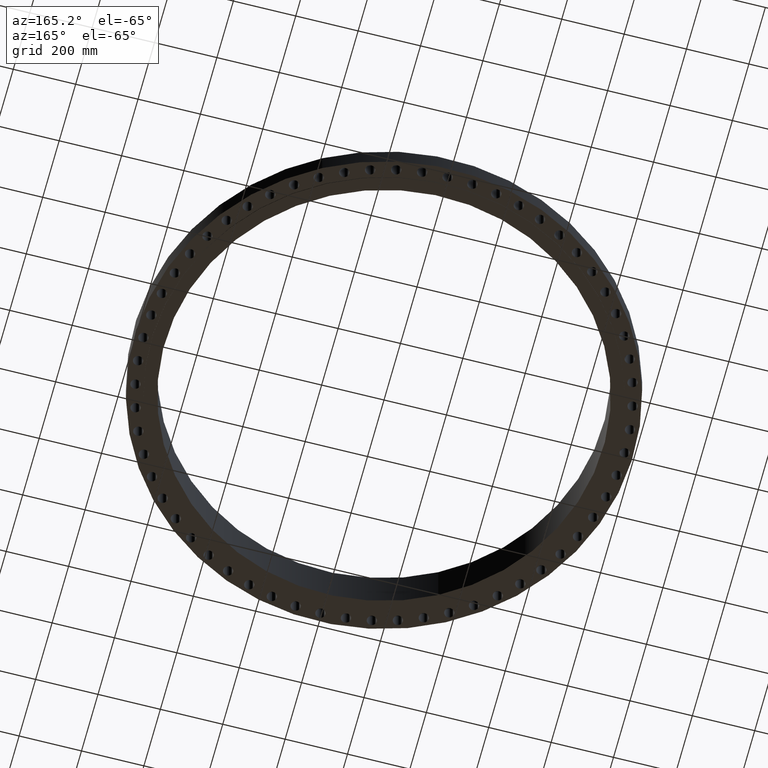
[diagram: clean part render]
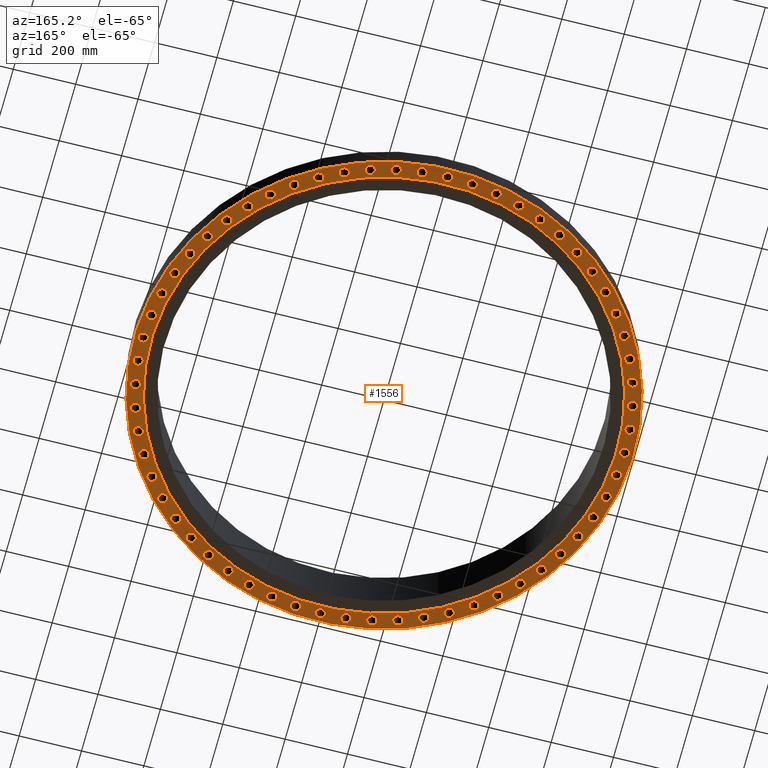
[diagram: same view with one face highlighted and labeled with its STEP entity id]
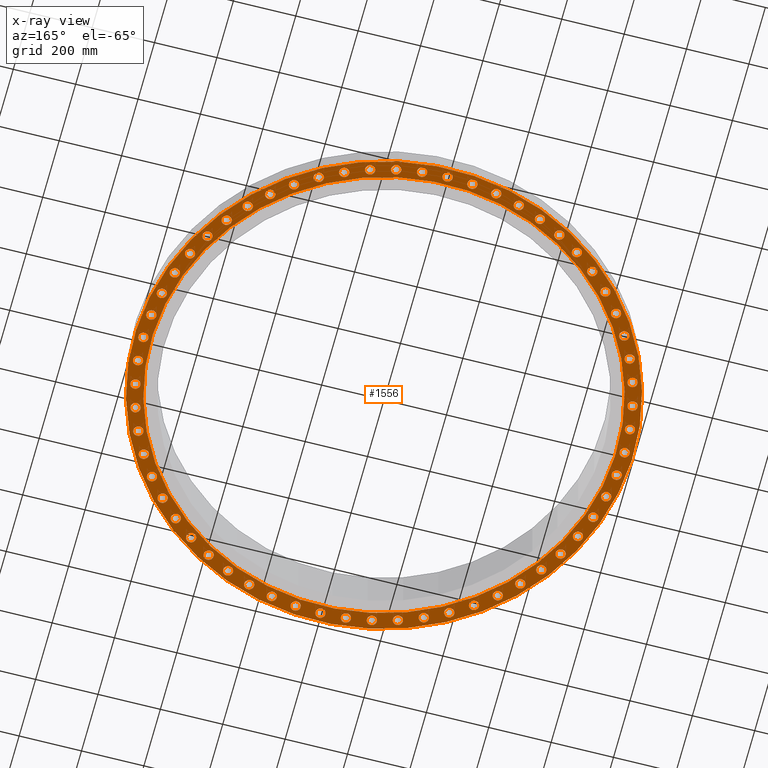
[diagram: x-ray of the same camera — body ghosted, the highlighted face saturated]
A machine part, auxiliary view. The second image highlights one B-rep face of the part: STEP entity #1556.
The next image is the same camera in x-ray: the body ghosted, the highlighted face saturated — about 0% of this face is hidden behind the body in this view.
In plain terms, the highlighted planar face has unit normal (0, 0, -1).
Its self-contained STEP definition (entity closure, byte-faithful):
#51=AXIS2_PLACEMENT_3D('Circle Axis2P3D',#49,#50,$) ;
#77=AXIS2_PLACEMENT_3D('Circle Axis2P3D',#75,#76,$) ;
#99=AXIS2_PLACEMENT_3D('Circle Axis2P3D',#97,#98,$) ;
#134=AXIS2_PLACEMENT_3D('Circle Axis2P3D',#132,#133,$) ;
#448=AXIS2_PLACEMENT_3D('Circle Axis2P3D',#446,#447,$) ;
#467=AXIS2_PLACEMENT_3D('Circle Axis2P3D',#465,#466,$) ;
#480=AXIS2_PLACEMENT_3D('Plane Axis2P3D',#477,#478,#479) ;
#496=AXIS2_PLACEMENT_3D('Circle Axis2P3D',#494,#495,$) ;
#505=AXIS2_PLACEMENT_3D('Circle Axis2P3D',#503,#504,$) ;
#514=AXIS2_PLACEMENT_3D('Circle Axis2P3D',#512,#513,$) ;
#523=AXIS2_PLACEMENT_3D('Circle Axis2P3D',#521,#522,$) ;
#532=AXIS2_PLACEMENT_3D('Circle Axis2P3D',#530,#531,$) ;
#541=AXIS2_PLACEMENT_3D('Circle Axis2P3D',#539,#540,$) ;
#550=AXIS2_PLACEMENT_3D('Circle Axis2P3D',#548,#549,$) ;
#559=AXIS2_PLACEMENT_3D('Circle Axis2P3D',#557,#558,$) ;
#568=AXIS2_PLACEMENT_3D('Circle Axis2P3D',#566,#567,$) ;
#577=AXIS2_PLACEMENT_3D('Circle Axis2P3D',#575,#576,$) ;
#586=AXIS2_PLACEMENT_3D('Circle Axis2P3D',#584,#585,$) ;
#595=AXIS2_PLACEMENT_3D('Circle Axis2P3D',#593,#594,$) ;
#604=AXIS2_PLACEMENT_3D('Circle Axis2P3D',#602,#603,$) ;
#613=AXIS2_PLACEMENT_3D('Circle Axis2P3D',#611,#612,$) ;
#622=AXIS2_PLACEMENT_3D('Circle Axis2P3D',#620,#621,$) ;
#631=AXIS2_PLACEMENT_3D('Circle Axis2P3D',#629,#630,$) ;
#640=AXIS2_PLACEMENT_3D('Circle Axis2P3D',#638,#639,$) ;
#649=AXIS2_PLACEMENT_3D('Circle Axis2P3D',#647,#648,$) ;
#658=AXIS2_PLACEMENT_3D('Circle Axis2P3D',#656,#657,$) ;
#667=AXIS2_PLACEMENT_3D('Circle Axis2P3D',#665,#666,$) ;
#676=AXIS2_PLACEMENT_3D('Circle Axis2P3D',#674,#675,$) ;
#685=AXIS2_PLACEMENT_3D('Circle Axis2P3D',#683,#684,$) ;
#694=AXIS2_PLACEMENT_3D('Circle Axis2P3D',#692,#693,$) ;
#703=AXIS2_PLACEMENT_3D('Circle Axis2P3D',#701,#702,$) ;
#712=AXIS2_PLACEMENT_3D('Circle Axis2P3D',#710,#711,$) ;
#721=AXIS2_PLACEMENT_3D('Circle Axis2P3D',#719,#720,$) ;
#730=AXIS2_PLACEMENT_3D('Circle Axis2P3D',#728,#729,$) ;
#739=AXIS2_PLACEMENT_3D('Circle Axis2P3D',#737,#738,$) ;
#748=AXIS2_PLACEMENT_3D('Circle Axis2P3D',#746,#747,$) ;
#757=AXIS2_PLACEMENT_3D('Circle Axis2P3D',#755,#756,$) ;
#766=AXIS2_PLACEMENT_3D('Circle Axis2P3D',#764,#765,$) ;
#775=AXIS2_PLACEMENT_3D('Circle Axis2P3D',#773,#774,$) ;
#784=AXIS2_PLACEMENT_3D('Circle Axis2P3D',#782,#783,$) ;
#793=AXIS2_PLACEMENT_3D('Circle Axis2P3D',#791,#792,$) ;
#802=AXIS2_PLACEMENT_3D('Circle Axis2P3D',#800,#801,$) ;
#811=AXIS2_PLACEMENT_3D('Circle Axis2P3D',#809,#810,$) ;
#820=AXIS2_PLACEMENT_3D('Circle Axis2P3D',#818,#819,$) ;
#829=AXIS2_PLACEMENT_3D('Circle Axis2P3D',#827,#828,$) ;
#838=AXIS2_PLACEMENT_3D('Circle Axis2P3D',#836,#837,$) ;
#847=AXIS2_PLACEMENT_3D('Circle Axis2P3D',#845,#846,$) ;
#856=AXIS2_PLACEMENT_3D('Circle Axis2P3D',#854,#855,$) ;
#865=AXIS2_PLACEMENT_3D('Circle Axis2P3D',#863,#864,$) ;
#874=AXIS2_PLACEMENT_3D('Circle Axis2P3D',#872,#873,$) ;
#883=AXIS2_PLACEMENT_3D('Circle Axis2P3D',#881,#882,$) ;
#892=AXIS2_PLACEMENT_3D('Circle Axis2P3D',#890,#891,$) ;
#901=AXIS2_PLACEMENT_3D('Circle Axis2P3D',#899,#900,$) ;
#910=AXIS2_PLACEMENT_3D('Circle Axis2P3D',#908,#909,$) ;
#919=AXIS2_PLACEMENT_3D('Circle Axis2P3D',#917,#918,$) ;
#928=AXIS2_PLACEMENT_3D('Circle Axis2P3D',#926,#927,$) ;
#937=AXIS2_PLACEMENT_3D('Circle Axis2P3D',#935,#936,$) ;
#946=AXIS2_PLACEMENT_3D('Circle Axis2P3D',#944,#945,$) ;
#955=AXIS2_PLACEMENT_3D('Circle Axis2P3D',#953,#954,$) ;
#964=AXIS2_PLACEMENT_3D('Circle Axis2P3D',#962,#963,$) ;
#973=AXIS2_PLACEMENT_3D('Circle Axis2P3D',#971,#972,$) ;
#982=AXIS2_PLACEMENT_3D('Circle Axis2P3D',#980,#981,$) ;
#991=AXIS2_PLACEMENT_3D('Circle Axis2P3D',#989,#990,$) ;
#1000=AXIS2_PLACEMENT_3D('Circle Axis2P3D',#998,#999,$) ;
#1009=AXIS2_PLACEMENT_3D('Circle Axis2P3D',#1007,#1008,$) ;
#1018=AXIS2_PLACEMENT_3D('Circle Axis2P3D',#1016,#1017,$) ;
#1027=AXIS2_PLACEMENT_3D('Circle Axis2P3D',#1025,#1026,$) ;
#1036=AXIS2_PLACEMENT_3D('Circle Axis2P3D',#1034,#1035,$) ;
#1045=AXIS2_PLACEMENT_3D('Circle Axis2P3D',#1043,#1044,$) ;
#1054=AXIS2_PLACEMENT_3D('Circle Axis2P3D',#1052,#1053,$) ;
#1063=AXIS2_PLACEMENT_3D('Circle Axis2P3D',#1061,#1062,$) ;
#1072=AXIS2_PLACEMENT_3D('Circle Axis2P3D',#1070,#1071,$) ;
#1081=AXIS2_PLACEMENT_3D('Circle Axis2P3D',#1079,#1080,$) ;
#1090=AXIS2_PLACEMENT_3D('Circle Axis2P3D',#1088,#1089,$) ;
#1099=AXIS2_PLACEMENT_3D('Circle Axis2P3D',#1097,#1098,$) ;
#1108=AXIS2_PLACEMENT_3D('Circle Axis2P3D',#1106,#1107,$) ;
#1117=AXIS2_PLACEMENT_3D('Circle Axis2P3D',#1115,#1116,$) ;
#1126=AXIS2_PLACEMENT_3D('Circle Axis2P3D',#1124,#1125,$) ;
#1135=AXIS2_PLACEMENT_3D('Circle Axis2P3D',#1133,#1134,$) ;
#1144=AXIS2_PLACEMENT_3D('Circle Axis2P3D',#1142,#1143,$) ;
#1153=AXIS2_PLACEMENT_3D('Circle Axis2P3D',#1151,#1152,$) ;
#1162=AXIS2_PLACEMENT_3D('Circle Axis2P3D',#1160,#1161,$) ;
#1171=AXIS2_PLACEMENT_3D('Circle Axis2P3D',#1169,#1170,$) ;
#1180=AXIS2_PLACEMENT_3D('Circle Axis2P3D',#1178,#1179,$) ;
#1189=AXIS2_PLACEMENT_3D('Circle Axis2P3D',#1187,#1188,$) ;
#1198=AXIS2_PLACEMENT_3D('Circle Axis2P3D',#1196,#1197,$) ;
#1207=AXIS2_PLACEMENT_3D('Circle Axis2P3D',#1205,#1206,$) ;
#1216=AXIS2_PLACEMENT_3D('Circle Axis2P3D',#1214,#1215,$) ;
#1225=AXIS2_PLACEMENT_3D('Circle Axis2P3D',#1223,#1224,$) ;
#1234=AXIS2_PLACEMENT_3D('Circle Axis2P3D',#1232,#1233,$) ;
#1243=AXIS2_PLACEMENT_3D('Circle Axis2P3D',#1241,#1242,$) ;
#1252=AXIS2_PLACEMENT_3D('Circle Axis2P3D',#1250,#1251,$) ;
#1261=AXIS2_PLACEMENT_3D('Circle Axis2P3D',#1259,#1260,$) ;
#1270=AXIS2_PLACEMENT_3D('Circle Axis2P3D',#1268,#1269,$) ;
#1279=AXIS2_PLACEMENT_3D('Circle Axis2P3D',#1277,#1278,$) ;
#1288=AXIS2_PLACEMENT_3D('Circle Axis2P3D',#1286,#1287,$) ;
#1297=AXIS2_PLACEMENT_3D('Circle Axis2P3D',#1295,#1296,$) ;
#1306=AXIS2_PLACEMENT_3D('Circle Axis2P3D',#1304,#1305,$) ;
#1315=AXIS2_PLACEMENT_3D('Circle Axis2P3D',#1313,#1314,$) ;
#1324=AXIS2_PLACEMENT_3D('Circle Axis2P3D',#1322,#1323,$) ;
#1333=AXIS2_PLACEMENT_3D('Circle Axis2P3D',#1331,#1332,$) ;
#1342=AXIS2_PLACEMENT_3D('Circle Axis2P3D',#1340,#1341,$) ;
#1351=AXIS2_PLACEMENT_3D('Circle Axis2P3D',#1349,#1350,$) ;
#1360=AXIS2_PLACEMENT_3D('Circle Axis2P3D',#1358,#1359,$) ;
#1369=AXIS2_PLACEMENT_3D('Circle Axis2P3D',#1367,#1368,$) ;
#1378=AXIS2_PLACEMENT_3D('Circle Axis2P3D',#1376,#1377,$) ;
#1387=AXIS2_PLACEMENT_3D('Circle Axis2P3D',#1385,#1386,$) ;
#1396=AXIS2_PLACEMENT_3D('Circle Axis2P3D',#1394,#1395,$) ;
#1405=AXIS2_PLACEMENT_3D('Circle Axis2P3D',#1403,#1404,$) ;
#1414=AXIS2_PLACEMENT_3D('Circle Axis2P3D',#1412,#1413,$) ;
#1423=AXIS2_PLACEMENT_3D('Circle Axis2P3D',#1421,#1422,$) ;
#1432=AXIS2_PLACEMENT_3D('Circle Axis2P3D',#1430,#1431,$) ;
#1441=AXIS2_PLACEMENT_3D('Circle Axis2P3D',#1439,#1440,$) ;
#1450=AXIS2_PLACEMENT_3D('Circle Axis2P3D',#1448,#1449,$) ;
#1459=AXIS2_PLACEMENT_3D('Circle Axis2P3D',#1457,#1458,$) ;
#1468=AXIS2_PLACEMENT_3D('Circle Axis2P3D',#1466,#1467,$) ;
#1477=AXIS2_PLACEMENT_3D('Circle Axis2P3D',#1475,#1476,$) ;
#1486=AXIS2_PLACEMENT_3D('Circle Axis2P3D',#1484,#1485,$) ;
#1495=AXIS2_PLACEMENT_3D('Circle Axis2P3D',#1493,#1494,$) ;
#1504=AXIS2_PLACEMENT_3D('Circle Axis2P3D',#1502,#1503,$) ;
#1513=AXIS2_PLACEMENT_3D('Circle Axis2P3D',#1511,#1512,$) ;
#1522=AXIS2_PLACEMENT_3D('Circle Axis2P3D',#1520,#1521,$) ;
#1531=AXIS2_PLACEMENT_3D('Circle Axis2P3D',#1529,#1530,$) ;
#1540=AXIS2_PLACEMENT_3D('Circle Axis2P3D',#1538,#1539,$) ;
#1549=AXIS2_PLACEMENT_3D('Circle Axis2P3D',#1547,#1548,$) ;
#44=CARTESIAN_POINT('Vertex',(29.8265108989,0.299640961629,0.)) ;
#49=CARTESIAN_POINT('Axis2P3D Location',(30.3750000001,0.,0.)) ;
#53=CARTESIAN_POINT('Vertex',(30.9234891013,-0.299640961629,0.)) ;
#75=CARTESIAN_POINT('Axis2P3D Location',(30.3750000001,0.,0.)) ;
#97=CARTESIAN_POINT('Axis2P3D Location',(0.,0.,3.91637728372E-015)) ;
#101=CARTESIAN_POINT('Vertex',(-15.1019044661,-27.6438506997,3.91637728372E-015)) ;
#103=CARTESIAN_POINT('Vertex',(15.1019044661,27.6438506997,3.91637728372E-015)) ;
#132=CARTESIAN_POINT('Axis2P3D Location',(0.,0.,3.91637728372E-015)) ;
#443=CARTESIAN_POINT('Vertex',(-14.0831251966,-25.7789877556,3.91637728372E-015)) ;
#446=CARTESIAN_POINT('Axis2P3D Location',(0.,0.,3.91637728372E-015)) ;
#450=CARTESIAN_POINT('Vertex',(14.0831251966,25.7789877556,3.91637728372E-015)) ;
#465=CARTESIAN_POINT('Axis2P3D Location',(0.,0.,3.91637728372E-015)) ;
#477=CARTESIAN_POINT('Axis2P3D Location',(0.,29.3750000001,0.)) ;
#494=CARTESIAN_POINT('Axis2P3D Location',(30.2086025719,-3.17505207177,0.)) ;
#498=CARTESIAN_POINT('Vertex',(29.6944391607,-2.81971985181,0.)) ;
#500=CARTESIAN_POINT('Vertex',(30.7227659832,-3.53038429172,-2.23792987641E-015)) ;
#503=CARTESIAN_POINT('Axis2P3D Location',(30.2086025719,-3.17505207177,0.)) ;
#512=CARTESIAN_POINT('Axis2P3D Location',(29.7112333724,-6.31531760861,0.)) ;
#516=CARTESIAN_POINT('Vertex',(29.237028933,-5.90818722449,0.)) ;
#518=CARTESIAN_POINT('Vertex',(30.1854378118,-6.72244799274,-1.1189649382E-015)) ;
#521=CARTESIAN_POINT('Axis2P3D Location',(29.7112333724,-6.31531760861,0.)) ;
#530=CARTESIAN_POINT('Axis2P3D Location',(28.8883416826,-9.38639120418,0.)) ;
#534=CARTESIAN_POINT('Vertex',(28.4592916981,-8.93192326158,0.)) ;
#536=CARTESIAN_POINT('Vertex',(29.317391667,-9.84085914678,-2.23792987641E-015)) ;
#539=CARTESIAN_POINT('Axis2P3D Location',(28.8883416826,-9.38639120418,0.)) ;
#548=CARTESIAN_POINT('Axis2P3D Location',(27.748943276,-12.3546255335,0.)) ;
#552=CARTESIAN_POINT('Vertex',(27.3697485079,-11.8577992783,0.)) ;
#554=CARTESIAN_POINT('Vertex',(28.1281380441,-12.8514517887,-2.23792987641E-015)) ;
#557=CARTESIAN_POINT('Axis2P3D Location',(27.748943276,-12.3546255335,0.)) ;
#566=CARTESIAN_POINT('Axis2P3D Location',(26.3055216401,-15.1875000001,0.)) ;
#570=CARTESIAN_POINT('Vertex',(25.9803366255,-14.6537587647,0.)) ;
#572=CARTESIAN_POINT('Vertex',(26.6307066546,-15.7212412354,0.)) ;
#575=CARTESIAN_POINT('Axis2P3D Location',(26.3055216401,-15.1875000001,0.)) ;
#584=CARTESIAN_POINT('Axis2P3D Location',(24.5738912042,-17.8539770385,0.)) ;
#588=CARTESIAN_POINT('Vertex',(24.3062787384,-17.2891686036,0.)) ;
#590=CARTESIAN_POINT('Vertex',(24.8415036701,-18.4187854733,0.)) ;
#593=CARTESIAN_POINT('Axis2P3D Location',(24.5738912042,-17.8539770385,0.)) ;
#602=CARTESIAN_POINT('Axis2P3D Location',(22.573024074,-20.3248421682,0.)) ;
#606=CARTESIAN_POINT('Vertex',(22.3659161749,-19.7351546932,0.)) ;
#608=CARTESIAN_POINT('Vertex',(22.780131973,-20.9145296432,0.)) ;
#611=CARTESIAN_POINT('Axis2P3D Location',(22.573024074,-20.3248421682,0.)) ;
#620=CARTESIAN_POINT('Axis2P3D Location',(20.3248421682,-22.573024074,0.)) ;
#624=CARTESIAN_POINT('Vertex',(20.1805079535,-21.9649182982,0.)) ;
#626=CARTESIAN_POINT('Vertex',(20.469176383,-23.1811298497,0.)) ;
#629=CARTESIAN_POINT('Axis2P3D Location',(20.3248421682,-22.573024074,0.)) ;
#638=CARTESIAN_POINT('Axis2P3D Location',(17.8539770385,-24.5738912042,0.)) ;
#642=CARTESIAN_POINT('Vertex',(17.7739978639,-23.9540296619,0.)) ;
#644=CARTESIAN_POINT('Vertex',(17.933956213,-25.1937527466,0.)) ;
#647=CARTESIAN_POINT('Axis2P3D Location',(17.8539770385,-24.5738912042,0.)) ;
#656=CARTESIAN_POINT('Axis2P3D Location',(15.1875000001,-26.3055216401,0.)) ;
#660=CARTESIAN_POINT('Vertex',(15.1727521343,-25.6806956639,0.)) ;
#662=CARTESIAN_POINT('Vertex',(15.2022478659,-26.9303476162,0.)) ;
#665=CARTESIAN_POINT('Axis2P3D Location',(15.1875000001,-26.3055216401,0.)) ;
#674=CARTESIAN_POINT('Axis2P3D Location',(12.3546255335,-27.748943276,0.)) ;
#678=CARTESIAN_POINT('Vertex',(12.4052705571,-27.1259985902,0.)) ;
#680=CARTESIAN_POINT('Vertex',(12.3039805098,-28.3718879618,-2.23792987641E-015)) ;
#683=CARTESIAN_POINT('Axis2P3D Location',(12.3546255335,-27.748943276,0.)) ;
#692=CARTESIAN_POINT('Axis2P3D Location',(9.38639120418,-28.8883416826,0.)) ;
#696=CARTESIAN_POINT('Vertex',(9.50187423979,-28.2741033994,0.)) ;
#698=CARTESIAN_POINT('Vertex',(9.27090816857,-29.5025799657,-2.23792987641E-015)) ;
#701=CARTESIAN_POINT('Axis2P3D Location',(9.38639120418,-28.8883416826,0.)) ;
#710=CARTESIAN_POINT('Axis2P3D Location',(6.31531760861,-29.7112333724,0.)) ;
#714=CARTESIAN_POINT('Vertex',(6.49437339989,-29.1124312151,0.)) ;
#716=CARTESIAN_POINT('Vertex',(6.13626181734,-30.3100355297,0.)) ;
#719=CARTESIAN_POINT('Axis2P3D Location',(6.31531760861,-29.7112333724,0.)) ;
#728=CARTESIAN_POINT('Axis2P3D Location',(3.17505207177,-30.2086025719,0.)) ;
#732=CARTESIAN_POINT('Vertex',(3.41571884599,-29.6317971422,0.)) ;
#734=CARTESIAN_POINT('Vertex',(2.93438529754,-30.7854080017,-2.23792987641E-015)) ;
#737=CARTESIAN_POINT('Axis2P3D Location',(3.17505207177,-30.2086025719,0.)) ;
#746=CARTESIAN_POINT('Axis2P3D Location',(-2.86734765415E-015,-30.3750000001,0.)) ;
#750=CARTESIAN_POINT('Vertex',(0.299640961629,-29.8265108989,0.)) ;
#752=CARTESIAN_POINT('Vertex',(-0.299640961629,-30.9234891013,0.)) ;
#755=CARTESIAN_POINT('Axis2P3D Location',(-2.16799456777E-015,-30.3750000001,0.)) ;
#764=CARTESIAN_POINT('Axis2P3D Location',(-3.17505207177,-30.2086025719,0.)) ;
#768=CARTESIAN_POINT('Vertex',(-2.81971985181,-29.6944391607,0.)) ;
#770=CARTESIAN_POINT('Vertex',(-3.53038429172,-30.7227659832,-2.23792987641E-015)) ;
#773=CARTESIAN_POINT('Axis2P3D Location',(-3.17505207177,-30.2086025719,0.)) ;
#782=CARTESIAN_POINT('Axis2P3D Location',(-6.31531760861,-29.7112333724,0.)) ;
#786=CARTESIAN_POINT('Vertex',(-5.90818722449,-29.237028933,0.)) ;
#788=CARTESIAN_POINT('Vertex',(-6.72244799274,-30.1854378118,-1.1189649382E-015)) ;
#791=CARTESIAN_POINT('Axis2P3D Location',(-6.31531760861,-29.7112333724,0.)) ;
#800=CARTESIAN_POINT('Axis2P3D Location',(-9.38639120418,-28.8883416826,0.)) ;
#804=CARTESIAN_POINT('Vertex',(-8.93192326158,-28.4592916981,0.)) ;
#806=CARTESIAN_POINT('Vertex',(-9.84085914678,-29.317391667,0.)) ;
#809=CARTESIAN_POINT('Axis2P3D Location',(-9.38639120418,-28.8883416826,0.)) ;
#818=CARTESIAN_POINT('Axis2P3D Location',(-12.3546255335,-27.748943276,0.)) ;
#822=CARTESIAN_POINT('Vertex',(-11.8577992783,-27.3697485079,0.)) ;
#824=CARTESIAN_POINT('Vertex',(-12.8514517887,-28.1281380441,0.)) ;
#827=CARTESIAN_POINT('Axis2P3D Location',(-12.3546255335,-27.748943276,0.)) ;
#836=CARTESIAN_POINT('Axis2P3D Location',(-15.1875000001,-26.3055216401,0.)) ;
#840=CARTESIAN_POINT('Vertex',(-14.6537587647,-25.9803366255,0.)) ;
#842=CARTESIAN_POINT('Vertex',(-15.7212412354,-26.6307066546,-2.23792987641E-015)) ;
#845=CARTESIAN_POINT('Axis2P3D Location',(-15.1875000001,-26.3055216401,0.)) ;
#854=CARTESIAN_POINT('Axis2P3D Location',(-17.8539770385,-24.5738912042,0.)) ;
#858=CARTESIAN_POINT('Vertex',(-17.2891686036,-24.3062787384,0.)) ;
#860=CARTESIAN_POINT('Vertex',(-18.4187854733,-24.8415036701,-2.23792987641E-015)) ;
#863=CARTESIAN_POINT('Axis2P3D Location',(-17.8539770385,-24.5738912042,0.)) ;
#872=CARTESIAN_POINT('Axis2P3D Location',(-20.3248421682,-22.573024074,0.)) ;
#876=CARTESIAN_POINT('Vertex',(-19.7351546932,-22.3659161749,0.)) ;
#878=CARTESIAN_POINT('Vertex',(-20.9145296432,-22.780131973,0.)) ;
#881=CARTESIAN_POINT('Axis2P3D Location',(-20.3248421682,-22.573024074,0.)) ;
#890=CARTESIAN_POINT('Axis2P3D Location',(-22.573024074,-20.3248421682,0.)) ;
#894=CARTESIAN_POINT('Vertex',(-21.9649182982,-20.1805079535,0.)) ;
#896=CARTESIAN_POINT('Vertex',(-23.1811298497,-20.469176383,0.)) ;
#899=CARTESIAN_POINT('Axis2P3D Location',(-22.573024074,-20.3248421682,0.)) ;
#908=CARTESIAN_POINT('Axis2P3D Location',(-24.5738912042,-17.8539770385,0.)) ;
#912=CARTESIAN_POINT('Vertex',(-23.9540296619,-17.7739978639,0.)) ;
#914=CARTESIAN_POINT('Vertex',(-25.1937527466,-17.933956213,0.)) ;
#917=CARTESIAN_POINT('Axis2P3D Location',(-24.5738912042,-17.8539770385,0.)) ;
#926=CARTESIAN_POINT('Axis2P3D Location',(-26.3055216401,-15.1875000001,0.)) ;
#930=CARTESIAN_POINT('Vertex',(-25.6806956639,-15.1727521343,0.)) ;
#932=CARTESIAN_POINT('Vertex',(-26.9303476162,-15.2022478659,0.)) ;
#935=CARTESIAN_POINT('Axis2P3D Location',(-26.3055216401,-15.1875000001,0.)) ;
#944=CARTESIAN_POINT('Axis2P3D Location',(-27.748943276,-12.3546255335,0.)) ;
#948=CARTESIAN_POINT('Vertex',(-27.1259985902,-12.4052705571,0.)) ;
#950=CARTESIAN_POINT('Vertex',(-28.3718879618,-12.3039805098,0.)) ;
#953=CARTESIAN_POINT('Axis2P3D Location',(-27.748943276,-12.3546255335,0.)) ;
#962=CARTESIAN_POINT('Axis2P3D Location',(-28.8883416826,-9.38639120418,0.)) ;
#966=CARTESIAN_POINT('Vertex',(-28.2741033994,-9.50187423979,0.)) ;
#968=CARTESIAN_POINT('Vertex',(-29.5025799657,-9.27090816857,0.)) ;
#971=CARTESIAN_POINT('Axis2P3D Location',(-28.8883416826,-9.38639120418,0.)) ;
#980=CARTESIAN_POINT('Axis2P3D Location',(-29.7112333724,-6.31531760861,0.)) ;
#984=CARTESIAN_POINT('Vertex',(-29.1124312151,-6.49437339989,0.)) ;
#986=CARTESIAN_POINT('Vertex',(-30.3100355297,-6.13626181734,-1.1189649382E-015)) ;
#989=CARTESIAN_POINT('Axis2P3D Location',(-29.7112333724,-6.31531760861,0.)) ;
#998=CARTESIAN_POINT('Axis2P3D Location',(-30.2086025719,-3.17505207177,0.)) ;
#1002=CARTESIAN_POINT('Vertex',(-29.6317971422,-3.41571884599,0.)) ;
#1004=CARTESIAN_POINT('Vertex',(-30.7854080017,-2.93438529754,0.)) ;
#1007=CARTESIAN_POINT('Axis2P3D Location',(-30.2086025719,-3.17505207177,0.)) ;
#1016=CARTESIAN_POINT('Axis2P3D Location',(-30.3750000001,0.,0.)) ;
#1020=CARTESIAN_POINT('Vertex',(-29.8265108989,-0.299640961629,0.)) ;
#1022=CARTESIAN_POINT('Vertex',(-30.9234891013,0.299640961629,0.)) ;
#1025=CARTESIAN_POINT('Axis2P3D Location',(-30.3750000001,0.,0.)) ;
#1034=CARTESIAN_POINT('Axis2P3D Location',(-30.2086025719,3.17505207177,0.)) ;
#1038=CARTESIAN_POINT('Vertex',(-29.6944391607,2.81971985181,0.)) ;
#1040=CARTESIAN_POINT('Vertex',(-30.7227659832,3.53038429172,-2.23792987641E-015)) ;
#1043=CARTESIAN_POINT('Axis2P3D Location',(-30.2086025719,3.17505207177,0.)) ;
#1052=CARTESIAN_POINT('Axis2P3D Location',(-29.7112333724,6.31531760861,0.)) ;
#1056=CARTESIAN_POINT('Vertex',(-29.237028933,5.90818722449,0.)) ;
#1058=CARTESIAN_POINT('Vertex',(-30.1854378118,6.72244799274,0.)) ;
#1061=CARTESIAN_POINT('Axis2P3D Location',(-29.7112333724,6.31531760861,0.)) ;
#1070=CARTESIAN_POINT('Axis2P3D Location',(-28.8883416826,9.38639120418,0.)) ;
#1074=CARTESIAN_POINT('Vertex',(-28.4592916981,8.93192326158,0.)) ;
#1076=CARTESIAN_POINT('Vertex',(-29.317391667,9.84085914678,0.)) ;
#1079=CARTESIAN_POINT('Axis2P3D Location',(-28.8883416826,9.38639120418,0.)) ;
#1088=CARTESIAN_POINT('Axis2P3D Location',(-27.748943276,12.3546255335,0.)) ;
#1092=CARTESIAN_POINT('Vertex',(-27.3697485079,11.8577992783,0.)) ;
#1094=CARTESIAN_POINT('Vertex',(-28.1281380441,12.8514517887,-2.23792987641E-015)) ;
#1097=CARTESIAN_POINT('Axis2P3D Location',(-27.748943276,12.3546255335,0.)) ;
#1106=CARTESIAN_POINT('Axis2P3D Location',(-26.3055216401,15.1875000001,0.)) ;
#1110=CARTESIAN_POINT('Vertex',(-25.9803366255,14.6537587647,0.)) ;
#1112=CARTESIAN_POINT('Vertex',(-26.6307066546,15.7212412354,0.)) ;
#1115=CARTESIAN_POINT('Axis2P3D Location',(-26.3055216401,15.1875000001,0.)) ;
#1124=CARTESIAN_POINT('Axis2P3D Location',(-24.5738912042,17.8539770385,0.)) ;
#1128=CARTESIAN_POINT('Vertex',(-24.3062787384,17.2891686036,0.)) ;
#1130=CARTESIAN_POINT('Vertex',(-24.8415036701,18.4187854733,-2.23792987641E-015)) ;
#1133=CARTESIAN_POINT('Axis2P3D Location',(-24.5738912042,17.8539770385,0.)) ;
#1142=CARTESIAN_POINT('Axis2P3D Location',(-22.573024074,20.3248421682,0.)) ;
#1146=CARTESIAN_POINT('Vertex',(-22.3659161749,19.7351546932,0.)) ;
#1148=CARTESIAN_POINT('Vertex',(-22.780131973,20.9145296432,0.)) ;
#1151=CARTESIAN_POINT('Axis2P3D Location',(-22.573024074,20.3248421682,0.)) ;
#1160=CARTESIAN_POINT('Axis2P3D Location',(-20.3248421682,22.573024074,0.)) ;
#1164=CARTESIAN_POINT('Vertex',(-20.1805079535,21.9649182982,0.)) ;
#1166=CARTESIAN_POINT('Vertex',(-20.469176383,23.1811298497,0.)) ;
#1169=CARTESIAN_POINT('Axis2P3D Location',(-20.3248421682,22.573024074,0.)) ;
#1178=CARTESIAN_POINT('Axis2P3D Location',(-17.8539770385,24.5738912042,0.)) ;
#1182=CARTESIAN_POINT('Vertex',(-17.7739978639,23.9540296619,0.)) ;
#1184=CARTESIAN_POINT('Vertex',(-17.933956213,25.1937527466,0.)) ;
#1187=CARTESIAN_POINT('Axis2P3D Location',(-17.8539770385,24.5738912042,0.)) ;
#1196=CARTESIAN_POINT('Axis2P3D Location',(-15.1875000001,26.3055216401,0.)) ;
#1200=CARTESIAN_POINT('Vertex',(-15.1727521343,25.6806956639,0.)) ;
#1202=CARTESIAN_POINT('Vertex',(-15.2022478659,26.9303476162,0.)) ;
#1205=CARTESIAN_POINT('Axis2P3D Location',(-15.1875000001,26.3055216401,0.)) ;
#1214=CARTESIAN_POINT('Axis2P3D Location',(-12.3546255335,27.748943276,0.)) ;
#1218=CARTESIAN_POINT('Vertex',(-12.4052705571,27.1259985902,0.)) ;
#1220=CARTESIAN_POINT('Vertex',(-12.3039805098,28.3718879618,0.)) ;
#1223=CARTESIAN_POINT('Axis2P3D Location',(-12.3546255335,27.748943276,0.)) ;
#1232=CARTESIAN_POINT('Axis2P3D Location',(-9.38639120418,28.8883416826,0.)) ;
#1236=CARTESIAN_POINT('Vertex',(-9.50187423979,28.2741033994,0.)) ;
#1238=CARTESIAN_POINT('Vertex',(-9.27090816857,29.5025799657,0.)) ;
#1241=CARTESIAN_POINT('Axis2P3D Location',(-9.38639120418,28.8883416826,0.)) ;
#1250=CARTESIAN_POINT('Axis2P3D Location',(-6.31531760861,29.7112333724,0.)) ;
#1254=CARTESIAN_POINT('Vertex',(-6.49437339989,29.1124312151,0.)) ;
#1256=CARTESIAN_POINT('Vertex',(-6.13626181734,30.3100355297,-1.1189649382E-015)) ;
#1259=CARTESIAN_POINT('Axis2P3D Location',(-6.31531760861,29.7112333724,0.)) ;
#1268=CARTESIAN_POINT('Axis2P3D Location',(-3.17505207177,30.2086025719,0.)) ;
#1272=CARTESIAN_POINT('Vertex',(-3.41571884599,29.6317971422,0.)) ;
#1274=CARTESIAN_POINT('Vertex',(-2.93438529754,30.7854080017,-1.1189649382E-015)) ;
#1277=CARTESIAN_POINT('Axis2P3D Location',(-3.17505207177,30.2086025719,0.)) ;
#1286=CARTESIAN_POINT('Axis2P3D Location',(-6.99353086378E-016,30.3750000001,0.)) ;
#1290=CARTESIAN_POINT('Vertex',(-0.299640961629,29.8265108989,0.)) ;
#1292=CARTESIAN_POINT('Vertex',(0.299640961629,30.9234891013,0.)) ;
#1295=CARTESIAN_POINT('Axis2P3D Location',(-1.60851209867E-015,30.3750000001,0.)) ;
#1304=CARTESIAN_POINT('Axis2P3D Location',(3.17505207177,30.2086025719,0.)) ;
#1308=CARTESIAN_POINT('Vertex',(2.81971985181,29.6944391607,0.)) ;
#1310=CARTESIAN_POINT('Vertex',(3.53038429172,30.7227659832,0.)) ;
#1313=CARTESIAN_POINT('Axis2P3D Location',(3.17505207177,30.2086025719,0.)) ;
#1322=CARTESIAN_POINT('Axis2P3D Location',(6.31531760861,29.7112333724,0.)) ;
#1326=CARTESIAN_POINT('Vertex',(5.90818722449,29.237028933,0.)) ;
#1328=CARTESIAN_POINT('Vertex',(6.72244799274,30.1854378118,0.)) ;
#1331=CARTESIAN_POINT('Axis2P3D Location',(6.31531760861,29.7112333724,0.)) ;
#1340=CARTESIAN_POINT('Axis2P3D Location',(9.38639120418,28.8883416826,0.)) ;
#1344=CARTESIAN_POINT('Vertex',(8.93192326158,28.4592916981,0.)) ;
#1346=CARTESIAN_POINT('Vertex',(9.84085914678,29.317391667,0.)) ;
#1349=CARTESIAN_POINT('Axis2P3D Location',(9.38639120418,28.8883416826,0.)) ;
#1358=CARTESIAN_POINT('Axis2P3D Location',(12.3546255335,27.748943276,0.)) ;
#1362=CARTESIAN_POINT('Vertex',(11.8577992783,27.3697485079,0.)) ;
#1364=CARTESIAN_POINT('Vertex',(12.8514517887,28.1281380441,0.)) ;
#1367=CARTESIAN_POINT('Axis2P3D Location',(12.3546255335,27.748943276,0.)) ;
#1376=CARTESIAN_POINT('Axis2P3D Location',(15.1875000001,26.3055216401,0.)) ;
#1380=CARTESIAN_POINT('Vertex',(14.6537587647,25.9803366255,0.)) ;
#1382=CARTESIAN_POINT('Vertex',(15.7212412354,26.6307066546,0.)) ;
#1385=CARTESIAN_POINT('Axis2P3D Location',(15.1875000001,26.3055216401,0.)) ;
#1394=CARTESIAN_POINT('Axis2P3D Location',(17.8539770385,24.5738912042,0.)) ;
#1398=CARTESIAN_POINT('Vertex',(17.2891686036,24.3062787384,0.)) ;
#1400=CARTESIAN_POINT('Vertex',(18.4187854733,24.8415036701,0.)) ;
#1403=CARTESIAN_POINT('Axis2P3D Location',(17.8539770385,24.5738912042,0.)) ;
#1412=CARTESIAN_POINT('Axis2P3D Location',(20.3248421682,22.573024074,0.)) ;
#1416=CARTESIAN_POINT('Vertex',(19.7351546932,22.3659161749,0.)) ;
#1418=CARTESIAN_POINT('Vertex',(20.9145296432,22.780131973,-1.1189649382E-015)) ;
#1421=CARTESIAN_POINT('Axis2P3D Location',(20.3248421682,22.573024074,0.)) ;
#1430=CARTESIAN_POINT('Axis2P3D Location',(22.573024074,20.3248421682,0.)) ;
#1434=CARTESIAN_POINT('Vertex',(21.9649182982,20.1805079535,0.)) ;
#1436=CARTESIAN_POINT('Vertex',(23.1811298497,20.469176383,-1.1189649382E-015)) ;
#1439=CARTESIAN_POINT('Axis2P3D Location',(22.573024074,20.3248421682,0.)) ;
#1448=CARTESIAN_POINT('Axis2P3D Location',(24.5738912042,17.8539770385,0.)) ;
#1452=CARTESIAN_POINT('Vertex',(23.9540296619,17.7739978639,0.)) ;
#1454=CARTESIAN_POINT('Vertex',(25.1937527466,17.933956213,-1.1189649382E-015)) ;
#1457=CARTESIAN_POINT('Axis2P3D Location',(24.5738912042,17.8539770385,0.)) ;
#1466=CARTESIAN_POINT('Axis2P3D Location',(26.3055216401,15.1875000001,0.)) ;
#1470=CARTESIAN_POINT('Vertex',(25.6806956639,15.1727521343,0.)) ;
#1472=CARTESIAN_POINT('Vertex',(26.9303476162,15.2022478659,0.)) ;
#1475=CARTESIAN_POINT('Axis2P3D Location',(26.3055216401,15.1875000001,0.)) ;
#1484=CARTESIAN_POINT('Axis2P3D Location',(27.748943276,12.3546255335,0.)) ;
#1488=CARTESIAN_POINT('Vertex',(27.1259985902,12.4052705571,0.)) ;
#1490=CARTESIAN_POINT('Vertex',(28.3718879618,12.3039805098,0.)) ;
#1493=CARTESIAN_POINT('Axis2P3D Location',(27.748943276,12.3546255335,0.)) ;
#1502=CARTESIAN_POINT('Axis2P3D Location',(28.8883416826,9.38639120418,0.)) ;
#1506=CARTESIAN_POINT('Vertex',(28.2741033994,9.50187423979,0.)) ;
#1508=CARTESIAN_POINT('Vertex',(29.5025799657,9.27090816857,0.)) ;
#1511=CARTESIAN_POINT('Axis2P3D Location',(28.8883416826,9.38639120418,0.)) ;
#1520=CARTESIAN_POINT('Axis2P3D Location',(29.7112333724,6.31531760861,0.)) ;
#1524=CARTESIAN_POINT('Vertex',(29.1124312151,6.49437339989,0.)) ;
#1526=CARTESIAN_POINT('Vertex',(30.3100355297,6.13626181734,-1.1189649382E-015)) ;
#1529=CARTESIAN_POINT('Axis2P3D Location',(29.7112333724,6.31531760861,0.)) ;
#1538=CARTESIAN_POINT('Axis2P3D Location',(30.2086025719,3.17505207177,0.)) ;
#1542=CARTESIAN_POINT('Vertex',(29.6317971422,3.41571884599,0.)) ;
#1544=CARTESIAN_POINT('Vertex',(30.7854080017,2.93438529754,-2.23792987641E-015)) ;
#1547=CARTESIAN_POINT('Axis2P3D Location',(30.2086025719,3.17505207177,0.)) ;
#50=DIRECTION('Axis2P3D Direction',(0.,-0.,-0.0393700787402)) ;
#76=DIRECTION('Axis2P3D Direction',(0.,-0.,-0.0393700787402)) ;
#98=DIRECTION('Axis2P3D Direction',(0.,0.,-0.0393700787402)) ;
#133=DIRECTION('Axis2P3D Direction',(0.,0.,-0.0393700787402)) ;
#447=DIRECTION('Axis2P3D Direction',(0.,0.,-0.0393700787402)) ;
#466=DIRECTION('Axis2P3D Direction',(0.,0.,-0.0393700787402)) ;
#478=DIRECTION('Axis2P3D Direction',(0.,0.,-0.0393700787402)) ;
#479=DIRECTION('Axis2P3D XDirection',(0.0393700787402,0.,0.)) ;
#495=DIRECTION('Axis2P3D Direction',(0.,0.,-0.0393700787402)) ;
#504=DIRECTION('Axis2P3D Direction',(0.,0.,-0.0393700787402)) ;
#513=DIRECTION('Axis2P3D Direction',(0.,0.,-0.0393700787402)) ;
#522=DIRECTION('Axis2P3D Direction',(0.,0.,-0.0393700787402)) ;
#531=DIRECTION('Axis2P3D Direction',(0.,0.,-0.0393700787402)) ;
#540=DIRECTION('Axis2P3D Direction',(0.,0.,-0.0393700787402)) ;
#549=DIRECTION('Axis2P3D Direction',(0.,0.,-0.0393700787402)) ;
#558=DIRECTION('Axis2P3D Direction',(0.,0.,-0.0393700787402)) ;
#567=DIRECTION('Axis2P3D Direction',(0.,0.,-0.0393700787402)) ;
#576=DIRECTION('Axis2P3D Direction',(0.,0.,-0.0393700787402)) ;
#585=DIRECTION('Axis2P3D Direction',(0.,0.,-0.0393700787402)) ;
#594=DIRECTION('Axis2P3D Direction',(0.,0.,-0.0393700787402)) ;
#603=DIRECTION('Axis2P3D Direction',(0.,0.,-0.0393700787402)) ;
#612=DIRECTION('Axis2P3D Direction',(0.,0.,-0.0393700787402)) ;
#621=DIRECTION('Axis2P3D Direction',(0.,0.,-0.0393700787402)) ;
#630=DIRECTION('Axis2P3D Direction',(0.,0.,-0.0393700787402)) ;
#639=DIRECTION('Axis2P3D Direction',(0.,0.,-0.0393700787402)) ;
#648=DIRECTION('Axis2P3D Direction',(0.,0.,-0.0393700787402)) ;
#657=DIRECTION('Axis2P3D Direction',(0.,0.,-0.0393700787402)) ;
#666=DIRECTION('Axis2P3D Direction',(0.,0.,-0.0393700787402)) ;
#675=DIRECTION('Axis2P3D Direction',(0.,0.,-0.0393700787402)) ;
#684=DIRECTION('Axis2P3D Direction',(0.,0.,-0.0393700787402)) ;
#693=DIRECTION('Axis2P3D Direction',(0.,0.,-0.0393700787402)) ;
#702=DIRECTION('Axis2P3D Direction',(0.,0.,-0.0393700787402)) ;
#711=DIRECTION('Axis2P3D Direction',(0.,0.,-0.0393700787402)) ;
#720=DIRECTION('Axis2P3D Direction',(0.,0.,-0.0393700787402)) ;
#729=DIRECTION('Axis2P3D Direction',(0.,0.,-0.0393700787402)) ;
#738=DIRECTION('Axis2P3D Direction',(0.,0.,-0.0393700787402)) ;
#747=DIRECTION('Axis2P3D Direction',(0.,0.,-0.0393700787402)) ;
#756=DIRECTION('Axis2P3D Direction',(0.,0.,-0.0393700787402)) ;
#765=DIRECTION('Axis2P3D Direction',(0.,0.,-0.0393700787402)) ;
#774=DIRECTION('Axis2P3D Direction',(0.,0.,-0.0393700787402)) ;
#783=DIRECTION('Axis2P3D Direction',(0.,0.,-0.0393700787402)) ;
#792=DIRECTION('Axis2P3D Direction',(0.,0.,-0.0393700787402)) ;
#801=DIRECTION('Axis2P3D Direction',(0.,0.,-0.0393700787402)) ;
#810=DIRECTION('Axis2P3D Direction',(0.,0.,-0.0393700787402)) ;
#819=DIRECTION('Axis2P3D Direction',(0.,0.,-0.0393700787402)) ;
#828=DIRECTION('Axis2P3D Direction',(0.,0.,-0.0393700787402)) ;
#837=DIRECTION('Axis2P3D Direction',(0.,0.,-0.0393700787402)) ;
#846=DIRECTION('Axis2P3D Direction',(0.,0.,-0.0393700787402)) ;
#855=DIRECTION('Axis2P3D Direction',(0.,0.,-0.0393700787402)) ;
#864=DIRECTION('Axis2P3D Direction',(0.,0.,-0.0393700787402)) ;
#873=DIRECTION('Axis2P3D Direction',(0.,0.,-0.0393700787402)) ;
#882=DIRECTION('Axis2P3D Direction',(0.,0.,-0.0393700787402)) ;
#891=DIRECTION('Axis2P3D Direction',(0.,0.,-0.0393700787402)) ;
#900=DIRECTION('Axis2P3D Direction',(0.,0.,-0.0393700787402)) ;
#909=DIRECTION('Axis2P3D Direction',(0.,0.,-0.0393700787402)) ;
#918=DIRECTION('Axis2P3D Direction',(0.,0.,-0.0393700787402)) ;
#927=DIRECTION('Axis2P3D Direction',(0.,0.,-0.0393700787402)) ;
#936=DIRECTION('Axis2P3D Direction',(0.,0.,-0.0393700787402)) ;
#945=DIRECTION('Axis2P3D Direction',(0.,0.,-0.0393700787402)) ;
#954=DIRECTION('Axis2P3D Direction',(0.,0.,-0.0393700787402)) ;
#963=DIRECTION('Axis2P3D Direction',(0.,0.,-0.0393700787402)) ;
#972=DIRECTION('Axis2P3D Direction',(0.,0.,-0.0393700787402)) ;
#981=DIRECTION('Axis2P3D Direction',(0.,0.,-0.0393700787402)) ;
#990=DIRECTION('Axis2P3D Direction',(0.,0.,-0.0393700787402)) ;
#999=DIRECTION('Axis2P3D Direction',(0.,0.,-0.0393700787402)) ;
#1008=DIRECTION('Axis2P3D Direction',(0.,0.,-0.0393700787402)) ;
#1017=DIRECTION('Axis2P3D Direction',(0.,0.,-0.0393700787402)) ;
#1026=DIRECTION('Axis2P3D Direction',(0.,0.,-0.0393700787402)) ;
#1035=DIRECTION('Axis2P3D Direction',(0.,0.,-0.0393700787402)) ;
#1044=DIRECTION('Axis2P3D Direction',(0.,0.,-0.0393700787402)) ;
#1053=DIRECTION('Axis2P3D Direction',(0.,0.,-0.0393700787402)) ;
#1062=DIRECTION('Axis2P3D Direction',(0.,0.,-0.0393700787402)) ;
#1071=DIRECTION('Axis2P3D Direction',(0.,0.,-0.0393700787402)) ;
#1080=DIRECTION('Axis2P3D Direction',(0.,0.,-0.0393700787402)) ;
#1089=DIRECTION('Axis2P3D Direction',(0.,0.,-0.0393700787402)) ;
#1098=DIRECTION('Axis2P3D Direction',(0.,0.,-0.0393700787402)) ;
#1107=DIRECTION('Axis2P3D Direction',(0.,0.,-0.0393700787402)) ;
#1116=DIRECTION('Axis2P3D Direction',(0.,0.,-0.0393700787402)) ;
#1125=DIRECTION('Axis2P3D Direction',(0.,0.,-0.0393700787402)) ;
#1134=DIRECTION('Axis2P3D Direction',(0.,0.,-0.0393700787402)) ;
#1143=DIRECTION('Axis2P3D Direction',(0.,0.,-0.0393700787402)) ;
#1152=DIRECTION('Axis2P3D Direction',(0.,0.,-0.0393700787402)) ;
#1161=DIRECTION('Axis2P3D Direction',(0.,0.,-0.0393700787402)) ;
#1170=DIRECTION('Axis2P3D Direction',(0.,0.,-0.0393700787402)) ;
#1179=DIRECTION('Axis2P3D Direction',(0.,0.,-0.0393700787402)) ;
#1188=DIRECTION('Axis2P3D Direction',(0.,0.,-0.0393700787402)) ;
#1197=DIRECTION('Axis2P3D Direction',(0.,0.,-0.0393700787402)) ;
#1206=DIRECTION('Axis2P3D Direction',(0.,0.,-0.0393700787402)) ;
#1215=DIRECTION('Axis2P3D Direction',(0.,0.,-0.0393700787402)) ;
#1224=DIRECTION('Axis2P3D Direction',(0.,0.,-0.0393700787402)) ;
#1233=DIRECTION('Axis2P3D Direction',(0.,0.,-0.0393700787402)) ;
#1242=DIRECTION('Axis2P3D Direction',(0.,0.,-0.0393700787402)) ;
#1251=DIRECTION('Axis2P3D Direction',(0.,0.,-0.0393700787402)) ;
#1260=DIRECTION('Axis2P3D Direction',(0.,0.,-0.0393700787402)) ;
#1269=DIRECTION('Axis2P3D Direction',(0.,0.,-0.0393700787402)) ;
#1278=DIRECTION('Axis2P3D Direction',(0.,0.,-0.0393700787402)) ;
#1287=DIRECTION('Axis2P3D Direction',(0.,0.,-0.0393700787402)) ;
#1296=DIRECTION('Axis2P3D Direction',(0.,0.,-0.0393700787402)) ;
#1305=DIRECTION('Axis2P3D Direction',(0.,0.,-0.0393700787402)) ;
#1314=DIRECTION('Axis2P3D Direction',(0.,0.,-0.0393700787402)) ;
#1323=DIRECTION('Axis2P3D Direction',(0.,0.,-0.0393700787402)) ;
#1332=DIRECTION('Axis2P3D Direction',(0.,0.,-0.0393700787402)) ;
#1341=DIRECTION('Axis2P3D Direction',(0.,0.,-0.0393700787402)) ;
#1350=DIRECTION('Axis2P3D Direction',(0.,0.,-0.0393700787402)) ;
#1359=DIRECTION('Axis2P3D Direction',(0.,0.,-0.0393700787402)) ;
#1368=DIRECTION('Axis2P3D Direction',(0.,0.,-0.0393700787402)) ;
#1377=DIRECTION('Axis2P3D Direction',(0.,0.,-0.0393700787402)) ;
#1386=DIRECTION('Axis2P3D Direction',(0.,0.,-0.0393700787402)) ;
#1395=DIRECTION('Axis2P3D Direction',(0.,0.,-0.0393700787402)) ;
#1404=DIRECTION('Axis2P3D Direction',(0.,0.,-0.0393700787402)) ;
#1413=DIRECTION('Axis2P3D Direction',(0.,0.,-0.0393700787402)) ;
#1422=DIRECTION('Axis2P3D Direction',(0.,0.,-0.0393700787402)) ;
#1431=DIRECTION('Axis2P3D Direction',(0.,0.,-0.0393700787402)) ;
#1440=DIRECTION('Axis2P3D Direction',(0.,0.,-0.0393700787402)) ;
#1449=DIRECTION('Axis2P3D Direction',(0.,0.,-0.0393700787402)) ;
#1458=DIRECTION('Axis2P3D Direction',(0.,0.,-0.0393700787402)) ;
#1467=DIRECTION('Axis2P3D Direction',(0.,0.,-0.0393700787402)) ;
#1476=DIRECTION('Axis2P3D Direction',(0.,0.,-0.0393700787402)) ;
#1485=DIRECTION('Axis2P3D Direction',(0.,0.,-0.0393700787402)) ;
#1494=DIRECTION('Axis2P3D Direction',(0.,0.,-0.0393700787402)) ;
#1503=DIRECTION('Axis2P3D Direction',(0.,0.,-0.0393700787402)) ;
#1512=DIRECTION('Axis2P3D Direction',(0.,0.,-0.0393700787402)) ;
#1521=DIRECTION('Axis2P3D Direction',(0.,0.,-0.0393700787402)) ;
#1530=DIRECTION('Axis2P3D Direction',(0.,0.,-0.0393700787402)) ;
#1539=DIRECTION('Axis2P3D Direction',(0.,0.,-0.0393700787402)) ;
#1548=DIRECTION('Axis2P3D Direction',(0.,0.,-0.0393700787402)) ;
#483=ORIENTED_EDGE('',*,*,#105,.T.) ;
#484=ORIENTED_EDGE('',*,*,#136,.T.) ;
#487=ORIENTED_EDGE('',*,*,#79,.F.) ;
#488=ORIENTED_EDGE('',*,*,#55,.F.) ;
#491=ORIENTED_EDGE('',*,*,#469,.F.) ;
#492=ORIENTED_EDGE('',*,*,#452,.F.) ;
#509=ORIENTED_EDGE('',*,*,#502,.F.) ;
#510=ORIENTED_EDGE('',*,*,#507,.F.) ;
#527=ORIENTED_EDGE('',*,*,#520,.F.) ;
#528=ORIENTED_EDGE('',*,*,#525,.F.) ;
#545=ORIENTED_EDGE('',*,*,#538,.F.) ;
#546=ORIENTED_EDGE('',*,*,#543,.F.) ;
#563=ORIENTED_EDGE('',*,*,#556,.F.) ;
#564=ORIENTED_EDGE('',*,*,#561,.F.) ;
#581=ORIENTED_EDGE('',*,*,#574,.F.) ;
#582=ORIENTED_EDGE('',*,*,#579,.F.) ;
#599=ORIENTED_EDGE('',*,*,#592,.F.) ;
#600=ORIENTED_EDGE('',*,*,#597,.F.) ;
#617=ORIENTED_EDGE('',*,*,#610,.F.) ;
#618=ORIENTED_EDGE('',*,*,#615,.F.) ;
#635=ORIENTED_EDGE('',*,*,#628,.F.) ;
#636=ORIENTED_EDGE('',*,*,#633,.F.) ;
#653=ORIENTED_EDGE('',*,*,#646,.F.) ;
#654=ORIENTED_EDGE('',*,*,#651,.F.) ;
#671=ORIENTED_EDGE('',*,*,#664,.F.) ;
#672=ORIENTED_EDGE('',*,*,#669,.F.) ;
#689=ORIENTED_EDGE('',*,*,#682,.F.) ;
#690=ORIENTED_EDGE('',*,*,#687,.F.) ;
#707=ORIENTED_EDGE('',*,*,#700,.F.) ;
#708=ORIENTED_EDGE('',*,*,#705,.F.) ;
#725=ORIENTED_EDGE('',*,*,#718,.F.) ;
#726=ORIENTED_EDGE('',*,*,#723,.F.) ;
#743=ORIENTED_EDGE('',*,*,#736,.F.) ;
#744=ORIENTED_EDGE('',*,*,#741,.F.) ;
#761=ORIENTED_EDGE('',*,*,#754,.F.) ;
#762=ORIENTED_EDGE('',*,*,#759,.F.) ;
#779=ORIENTED_EDGE('',*,*,#772,.F.) ;
#780=ORIENTED_EDGE('',*,*,#777,.F.) ;
#797=ORIENTED_EDGE('',*,*,#790,.F.) ;
#798=ORIENTED_EDGE('',*,*,#795,.F.) ;
#815=ORIENTED_EDGE('',*,*,#808,.F.) ;
#816=ORIENTED_EDGE('',*,*,#813,.F.) ;
#833=ORIENTED_EDGE('',*,*,#826,.F.) ;
#834=ORIENTED_EDGE('',*,*,#831,.F.) ;
#851=ORIENTED_EDGE('',*,*,#844,.F.) ;
#852=ORIENTED_EDGE('',*,*,#849,.F.) ;
#869=ORIENTED_EDGE('',*,*,#862,.F.) ;
#870=ORIENTED_EDGE('',*,*,#867,.F.) ;
#887=ORIENTED_EDGE('',*,*,#880,.F.) ;
#888=ORIENTED_EDGE('',*,*,#885,.F.) ;
#905=ORIENTED_EDGE('',*,*,#898,.F.) ;
#906=ORIENTED_EDGE('',*,*,#903,.F.) ;
#923=ORIENTED_EDGE('',*,*,#916,.F.) ;
#924=ORIENTED_EDGE('',*,*,#921,.F.) ;
#941=ORIENTED_EDGE('',*,*,#934,.F.) ;
#942=ORIENTED_EDGE('',*,*,#939,.F.) ;
#959=ORIENTED_EDGE('',*,*,#952,.F.) ;
#960=ORIENTED_EDGE('',*,*,#957,.F.) ;
#977=ORIENTED_EDGE('',*,*,#970,.F.) ;
#978=ORIENTED_EDGE('',*,*,#975,.F.) ;
#995=ORIENTED_EDGE('',*,*,#988,.F.) ;
#996=ORIENTED_EDGE('',*,*,#993,.F.) ;
#1013=ORIENTED_EDGE('',*,*,#1006,.F.) ;
#1014=ORIENTED_EDGE('',*,*,#1011,.F.) ;
#1031=ORIENTED_EDGE('',*,*,#1024,.F.) ;
#1032=ORIENTED_EDGE('',*,*,#1029,.F.) ;
#1049=ORIENTED_EDGE('',*,*,#1042,.F.) ;
#1050=ORIENTED_EDGE('',*,*,#1047,.F.) ;
#1067=ORIENTED_EDGE('',*,*,#1060,.F.) ;
#1068=ORIENTED_EDGE('',*,*,#1065,.F.) ;
#1085=ORIENTED_EDGE('',*,*,#1078,.F.) ;
#1086=ORIENTED_EDGE('',*,*,#1083,.F.) ;
#1103=ORIENTED_EDGE('',*,*,#1096,.F.) ;
#1104=ORIENTED_EDGE('',*,*,#1101,.F.) ;
#1121=ORIENTED_EDGE('',*,*,#1114,.F.) ;
#1122=ORIENTED_EDGE('',*,*,#1119,.F.) ;
#1139=ORIENTED_EDGE('',*,*,#1132,.F.) ;
#1140=ORIENTED_EDGE('',*,*,#1137,.F.) ;
#1157=ORIENTED_EDGE('',*,*,#1150,.F.) ;
#1158=ORIENTED_EDGE('',*,*,#1155,.F.) ;
#1175=ORIENTED_EDGE('',*,*,#1168,.F.) ;
#1176=ORIENTED_EDGE('',*,*,#1173,.F.) ;
#1193=ORIENTED_EDGE('',*,*,#1186,.F.) ;
#1194=ORIENTED_EDGE('',*,*,#1191,.F.) ;
#1211=ORIENTED_EDGE('',*,*,#1204,.F.) ;
#1212=ORIENTED_EDGE('',*,*,#1209,.F.) ;
#1229=ORIENTED_EDGE('',*,*,#1222,.F.) ;
#1230=ORIENTED_EDGE('',*,*,#1227,.F.) ;
#1247=ORIENTED_EDGE('',*,*,#1240,.F.) ;
#1248=ORIENTED_EDGE('',*,*,#1245,.F.) ;
#1265=ORIENTED_EDGE('',*,*,#1258,.F.) ;
#1266=ORIENTED_EDGE('',*,*,#1263,.F.) ;
#1283=ORIENTED_EDGE('',*,*,#1276,.F.) ;
#1284=ORIENTED_EDGE('',*,*,#1281,.F.) ;
#1301=ORIENTED_EDGE('',*,*,#1294,.F.) ;
#1302=ORIENTED_EDGE('',*,*,#1299,.F.) ;
#1319=ORIENTED_EDGE('',*,*,#1312,.F.) ;
#1320=ORIENTED_EDGE('',*,*,#1317,.F.) ;
#1337=ORIENTED_EDGE('',*,*,#1330,.F.) ;
#1338=ORIENTED_EDGE('',*,*,#1335,.F.) ;
#1355=ORIENTED_EDGE('',*,*,#1348,.F.) ;
#1356=ORIENTED_EDGE('',*,*,#1353,.F.) ;
#1373=ORIENTED_EDGE('',*,*,#1366,.F.) ;
#1374=ORIENTED_EDGE('',*,*,#1371,.F.) ;
#1391=ORIENTED_EDGE('',*,*,#1384,.F.) ;
#1392=ORIENTED_EDGE('',*,*,#1389,.F.) ;
#1409=ORIENTED_EDGE('',*,*,#1402,.F.) ;
#1410=ORIENTED_EDGE('',*,*,#1407,.F.) ;
#1427=ORIENTED_EDGE('',*,*,#1420,.F.) ;
#1428=ORIENTED_EDGE('',*,*,#1425,.F.) ;
#1445=ORIENTED_EDGE('',*,*,#1438,.F.) ;
#1446=ORIENTED_EDGE('',*,*,#1443,.F.) ;
#1463=ORIENTED_EDGE('',*,*,#1456,.F.) ;
#1464=ORIENTED_EDGE('',*,*,#1461,.F.) ;
#1481=ORIENTED_EDGE('',*,*,#1474,.F.) ;
#1482=ORIENTED_EDGE('',*,*,#1479,.F.) ;
#1499=ORIENTED_EDGE('',*,*,#1492,.F.) ;
#1500=ORIENTED_EDGE('',*,*,#1497,.F.) ;
#1517=ORIENTED_EDGE('',*,*,#1510,.F.) ;
#1518=ORIENTED_EDGE('',*,*,#1515,.F.) ;
#1535=ORIENTED_EDGE('',*,*,#1528,.F.) ;
#1536=ORIENTED_EDGE('',*,*,#1533,.F.) ;
#1553=ORIENTED_EDGE('',*,*,#1546,.F.) ;
#1554=ORIENTED_EDGE('',*,*,#1551,.F.) ;
#489=FACE_BOUND('',#486,.T.) ;
#493=FACE_BOUND('',#490,.T.) ;
#511=FACE_BOUND('',#508,.T.) ;
#529=FACE_BOUND('',#526,.T.) ;
#547=FACE_BOUND('',#544,.T.) ;
#565=FACE_BOUND('',#562,.T.) ;
#583=FACE_BOUND('',#580,.T.) ;
#601=FACE_BOUND('',#598,.T.) ;
#619=FACE_BOUND('',#616,.T.) ;
#637=FACE_BOUND('',#634,.T.) ;
#655=FACE_BOUND('',#652,.T.) ;
#673=FACE_BOUND('',#670,.T.) ;
#691=FACE_BOUND('',#688,.T.) ;
#709=FACE_BOUND('',#706,.T.) ;
#727=FACE_BOUND('',#724,.T.) ;
#745=FACE_BOUND('',#742,.T.) ;
#763=FACE_BOUND('',#760,.T.) ;
#781=FACE_BOUND('',#778,.T.) ;
#799=FACE_BOUND('',#796,.T.) ;
#817=FACE_BOUND('',#814,.T.) ;
#835=FACE_BOUND('',#832,.T.) ;
#853=FACE_BOUND('',#850,.T.) ;
#871=FACE_BOUND('',#868,.T.) ;
#889=FACE_BOUND('',#886,.T.) ;
#907=FACE_BOUND('',#904,.T.) ;
#925=FACE_BOUND('',#922,.T.) ;
#943=FACE_BOUND('',#940,.T.) ;
#961=FACE_BOUND('',#958,.T.) ;
#979=FACE_BOUND('',#976,.T.) ;
#997=FACE_BOUND('',#994,.T.) ;
#1015=FACE_BOUND('',#1012,.T.) ;
#1033=FACE_BOUND('',#1030,.T.) ;
#1051=FACE_BOUND('',#1048,.T.) ;
#1069=FACE_BOUND('',#1066,.T.) ;
#1087=FACE_BOUND('',#1084,.T.) ;
#1105=FACE_BOUND('',#1102,.T.) ;
#1123=FACE_BOUND('',#1120,.T.) ;
#1141=FACE_BOUND('',#1138,.T.) ;
#1159=FACE_BOUND('',#1156,.T.) ;
#1177=FACE_BOUND('',#1174,.T.) ;
#1195=FACE_BOUND('',#1192,.T.) ;
#1213=FACE_BOUND('',#1210,.T.) ;
#1231=FACE_BOUND('',#1228,.T.) ;
#1249=FACE_BOUND('',#1246,.T.) ;
#1267=FACE_BOUND('',#1264,.T.) ;
#1285=FACE_BOUND('',#1282,.T.) ;
#1303=FACE_BOUND('',#1300,.T.) ;
#1321=FACE_BOUND('',#1318,.T.) ;
#1339=FACE_BOUND('',#1336,.T.) ;
#1357=FACE_BOUND('',#1354,.T.) ;
#1375=FACE_BOUND('',#1372,.T.) ;
#1393=FACE_BOUND('',#1390,.T.) ;
#1411=FACE_BOUND('',#1408,.T.) ;
#1429=FACE_BOUND('',#1426,.T.) ;
#1447=FACE_BOUND('',#1444,.T.) ;
#1465=FACE_BOUND('',#1462,.T.) ;
#1483=FACE_BOUND('',#1480,.T.) ;
#1501=FACE_BOUND('',#1498,.T.) ;
#1519=FACE_BOUND('',#1516,.T.) ;
#1537=FACE_BOUND('',#1534,.T.) ;
#1555=FACE_BOUND('',#1552,.T.) ;
#1556=ADVANCED_FACE('PartBody',(#485,#489,#493,#511,#529,#547,#565,#583,#601,#619,#637,#655,#673,#691,#709,#727,#745,#763,#781,#799,#817,#835,#853,#871,#889,#907,#925,#943,#961,#979,#997,#1015,#1033,#1051,#1069,#1087,#1105,#1123,#1141,#1159,#1177,#1195,#1213,#1231,#1249,#1267,#1285,#1303,#1321,#1339,#1357,#1375,#1393,#1411,#1429,#1447,#1465,#1483,#1501,#1519,#1537,#1555),#481,.T.) ;
#52=CIRCLE('generated circle',#51,0.625000000003) ;
#78=CIRCLE('generated circle',#77,0.625000000003) ;
#100=CIRCLE('generated circle',#99,31.5000000001) ;
#135=CIRCLE('generated circle',#134,31.5000000001) ;
#449=CIRCLE('generated circle',#448,29.3750000001) ;
#468=CIRCLE('generated circle',#467,29.3750000001) ;
#497=CIRCLE('generated circle',#496,0.625000000002) ;
#506=CIRCLE('generated circle',#505,0.625000000002) ;
#515=CIRCLE('generated circle',#514,0.625000000002) ;
#524=CIRCLE('generated circle',#523,0.625000000002) ;
#533=CIRCLE('generated circle',#532,0.625000000003) ;
#542=CIRCLE('generated circle',#541,0.625000000003) ;
#551=CIRCLE('generated circle',#550,0.625000000003) ;
#560=CIRCLE('generated circle',#559,0.625000000003) ;
#569=CIRCLE('generated circle',#568,0.625000000003) ;
#578=CIRCLE('generated circle',#577,0.625000000003) ;
#587=CIRCLE('generated circle',#586,0.625000000003) ;
#596=CIRCLE('generated circle',#595,0.625000000003) ;
#605=CIRCLE('generated circle',#604,0.625000000003) ;
#614=CIRCLE('generated circle',#613,0.625000000003) ;
#623=CIRCLE('generated circle',#622,0.625000000003) ;
#632=CIRCLE('generated circle',#631,0.625000000003) ;
#641=CIRCLE('generated circle',#640,0.625000000003) ;
#650=CIRCLE('generated circle',#649,0.625000000003) ;
#659=CIRCLE('generated circle',#658,0.625000000003) ;
#668=CIRCLE('generated circle',#667,0.625000000003) ;
#677=CIRCLE('generated circle',#676,0.625000000003) ;
#686=CIRCLE('generated circle',#685,0.625000000003) ;
#695=CIRCLE('generated circle',#694,0.625000000003) ;
#704=CIRCLE('generated circle',#703,0.625000000003) ;
#713=CIRCLE('generated circle',#712,0.625000000002) ;
#722=CIRCLE('generated circle',#721,0.625000000002) ;
#731=CIRCLE('generated circle',#730,0.625000000002) ;
#740=CIRCLE('generated circle',#739,0.625000000002) ;
#749=CIRCLE('generated circle',#748,0.625000000003) ;
#758=CIRCLE('generated circle',#757,0.625000000003) ;
#767=CIRCLE('generated circle',#766,0.625000000002) ;
#776=CIRCLE('generated circle',#775,0.625000000002) ;
#785=CIRCLE('generated circle',#784,0.625000000002) ;
#794=CIRCLE('generated circle',#793,0.625000000002) ;
#803=CIRCLE('generated circle',#802,0.625000000003) ;
#812=CIRCLE('generated circle',#811,0.625000000003) ;
#821=CIRCLE('generated circle',#820,0.625000000003) ;
#830=CIRCLE('generated circle',#829,0.625000000003) ;
#839=CIRCLE('generated circle',#838,0.625000000003) ;
#848=CIRCLE('generated circle',#847,0.625000000003) ;
#857=CIRCLE('generated circle',#856,0.625000000003) ;
#866=CIRCLE('generated circle',#865,0.625000000003) ;
#875=CIRCLE('generated circle',#874,0.625000000003) ;
#884=CIRCLE('generated circle',#883,0.625000000003) ;
#893=CIRCLE('generated circle',#892,0.625000000003) ;
#902=CIRCLE('generated circle',#901,0.625000000003) ;
#911=CIRCLE('generated circle',#910,0.625000000003) ;
#920=CIRCLE('generated circle',#919,0.625000000003) ;
#929=CIRCLE('generated circle',#928,0.625000000003) ;
#938=CIRCLE('generated circle',#937,0.625000000003) ;
#947=CIRCLE('generated circle',#946,0.625000000003) ;
#956=CIRCLE('generated circle',#955,0.625000000003) ;
#965=CIRCLE('generated circle',#964,0.625000000003) ;
#974=CIRCLE('generated circle',#973,0.625000000003) ;
#983=CIRCLE('generated circle',#982,0.625000000002) ;
#992=CIRCLE('generated circle',#991,0.625000000002) ;
#1001=CIRCLE('generated circle',#1000,0.625000000002) ;
#1010=CIRCLE('generated circle',#1009,0.625000000002) ;
#1019=CIRCLE('generated circle',#1018,0.625000000002) ;
#1028=CIRCLE('generated circle',#1027,0.625000000002) ;
#1037=CIRCLE('generated circle',#1036,0.625000000002) ;
#1046=CIRCLE('generated circle',#1045,0.625000000002) ;
#1055=CIRCLE('generated circle',#1054,0.625000000002) ;
#1064=CIRCLE('generated circle',#1063,0.625000000002) ;
#1073=CIRCLE('generated circle',#1072,0.625000000003) ;
#1082=CIRCLE('generated circle',#1081,0.625000000003) ;
#1091=CIRCLE('generated circle',#1090,0.625000000003) ;
#1100=CIRCLE('generated circle',#1099,0.625000000003) ;
#1109=CIRCLE('generated circle',#1108,0.625000000003) ;
#1118=CIRCLE('generated circle',#1117,0.625000000003) ;
#1127=CIRCLE('generated circle',#1126,0.625000000003) ;
#1136=CIRCLE('generated circle',#1135,0.625000000003) ;
#1145=CIRCLE('generated circle',#1144,0.625000000003) ;
#1154=CIRCLE('generated circle',#1153,0.625000000003) ;
#1163=CIRCLE('generated circle',#1162,0.625000000003) ;
#1172=CIRCLE('generated circle',#1171,0.625000000003) ;
#1181=CIRCLE('generated circle',#1180,0.625000000003) ;
#1190=CIRCLE('generated circle',#1189,0.625000000003) ;
#1199=CIRCLE('generated circle',#1198,0.625000000003) ;
#1208=CIRCLE('generated circle',#1207,0.625000000003) ;
#1217=CIRCLE('generated circle',#1216,0.625000000003) ;
#1226=CIRCLE('generated circle',#1225,0.625000000003) ;
#1235=CIRCLE('generated circle',#1234,0.625000000003) ;
#1244=CIRCLE('generated circle',#1243,0.625000000003) ;
#1253=CIRCLE('generated circle',#1252,0.625000000002) ;
#1262=CIRCLE('generated circle',#1261,0.625000000002) ;
#1271=CIRCLE('generated circle',#1270,0.625000000002) ;
#1280=CIRCLE('generated circle',#1279,0.625000000002) ;
#1289=CIRCLE('generated circle',#1288,0.625000000003) ;
#1298=CIRCLE('generated circle',#1297,0.625000000003) ;
#1307=CIRCLE('generated circle',#1306,0.625000000002) ;
#1316=CIRCLE('generated circle',#1315,0.625000000002) ;
#1325=CIRCLE('generated circle',#1324,0.625000000002) ;
#1334=CIRCLE('generated circle',#1333,0.625000000002) ;
#1343=CIRCLE('generated circle',#1342,0.625000000003) ;
#1352=CIRCLE('generated circle',#1351,0.625000000003) ;
#1361=CIRCLE('generated circle',#1360,0.625000000003) ;
#1370=CIRCLE('generated circle',#1369,0.625000000003) ;
#1379=CIRCLE('generated circle',#1378,0.625000000003) ;
#1388=CIRCLE('generated circle',#1387,0.625000000003) ;
#1397=CIRCLE('generated circle',#1396,0.625000000003) ;
#1406=CIRCLE('generated circle',#1405,0.625000000003) ;
#1415=CIRCLE('generated circle',#1414,0.625000000003) ;
#1424=CIRCLE('generated circle',#1423,0.625000000003) ;
#1433=CIRCLE('generated circle',#1432,0.625000000003) ;
#1442=CIRCLE('generated circle',#1441,0.625000000003) ;
#1451=CIRCLE('generated circle',#1450,0.625000000003) ;
#1460=CIRCLE('generated circle',#1459,0.625000000003) ;
#1469=CIRCLE('generated circle',#1468,0.625000000003) ;
#1478=CIRCLE('generated circle',#1477,0.625000000003) ;
#1487=CIRCLE('generated circle',#1486,0.625000000003) ;
#1496=CIRCLE('generated circle',#1495,0.625000000003) ;
#1505=CIRCLE('generated circle',#1504,0.625000000003) ;
#1514=CIRCLE('generated circle',#1513,0.625000000003) ;
#1523=CIRCLE('generated circle',#1522,0.625000000002) ;
#1532=CIRCLE('generated circle',#1531,0.625000000002) ;
#1541=CIRCLE('generated circle',#1540,0.625000000002) ;
#1550=CIRCLE('generated circle',#1549,0.625000000002) ;
#55=EDGE_CURVE('',#45,#54,#52,.T.) ;
#79=EDGE_CURVE('',#54,#45,#78,.T.) ;
#105=EDGE_CURVE('',#102,#104,#100,.T.) ;
#136=EDGE_CURVE('',#104,#102,#135,.T.) ;
#452=EDGE_CURVE('',#444,#451,#449,.T.) ;
#469=EDGE_CURVE('',#451,#444,#468,.T.) ;
#502=EDGE_CURVE('',#499,#501,#497,.T.) ;
#507=EDGE_CURVE('',#501,#499,#506,.T.) ;
#520=EDGE_CURVE('',#517,#519,#515,.T.) ;
#525=EDGE_CURVE('',#519,#517,#524,.T.) ;
#538=EDGE_CURVE('',#535,#537,#533,.T.) ;
#543=EDGE_CURVE('',#537,#535,#542,.T.) ;
#556=EDGE_CURVE('',#553,#555,#551,.T.) ;
#561=EDGE_CURVE('',#555,#553,#560,.T.) ;
#574=EDGE_CURVE('',#571,#573,#569,.T.) ;
#579=EDGE_CURVE('',#573,#571,#578,.T.) ;
#592=EDGE_CURVE('',#589,#591,#587,.T.) ;
#597=EDGE_CURVE('',#591,#589,#596,.T.) ;
#610=EDGE_CURVE('',#607,#609,#605,.T.) ;
#615=EDGE_CURVE('',#609,#607,#614,.T.) ;
#628=EDGE_CURVE('',#625,#627,#623,.T.) ;
#633=EDGE_CURVE('',#627,#625,#632,.T.) ;
#646=EDGE_CURVE('',#643,#645,#641,.T.) ;
#651=EDGE_CURVE('',#645,#643,#650,.T.) ;
#664=EDGE_CURVE('',#661,#663,#659,.T.) ;
#669=EDGE_CURVE('',#663,#661,#668,.T.) ;
#682=EDGE_CURVE('',#679,#681,#677,.T.) ;
#687=EDGE_CURVE('',#681,#679,#686,.T.) ;
#700=EDGE_CURVE('',#697,#699,#695,.T.) ;
#705=EDGE_CURVE('',#699,#697,#704,.T.) ;
#718=EDGE_CURVE('',#715,#717,#713,.T.) ;
#723=EDGE_CURVE('',#717,#715,#722,.T.) ;
#736=EDGE_CURVE('',#733,#735,#731,.T.) ;
#741=EDGE_CURVE('',#735,#733,#740,.T.) ;
#754=EDGE_CURVE('',#751,#753,#749,.T.) ;
#759=EDGE_CURVE('',#753,#751,#758,.T.) ;
#772=EDGE_CURVE('',#769,#771,#767,.T.) ;
#777=EDGE_CURVE('',#771,#769,#776,.T.) ;
#790=EDGE_CURVE('',#787,#789,#785,.T.) ;
#795=EDGE_CURVE('',#789,#787,#794,.T.) ;
#808=EDGE_CURVE('',#805,#807,#803,.T.) ;
#813=EDGE_CURVE('',#807,#805,#812,.T.) ;
#826=EDGE_CURVE('',#823,#825,#821,.T.) ;
#831=EDGE_CURVE('',#825,#823,#830,.T.) ;
#844=EDGE_CURVE('',#841,#843,#839,.T.) ;
#849=EDGE_CURVE('',#843,#841,#848,.T.) ;
#862=EDGE_CURVE('',#859,#861,#857,.T.) ;
#867=EDGE_CURVE('',#861,#859,#866,.T.) ;
#880=EDGE_CURVE('',#877,#879,#875,.T.) ;
#885=EDGE_CURVE('',#879,#877,#884,.T.) ;
#898=EDGE_CURVE('',#895,#897,#893,.T.) ;
#903=EDGE_CURVE('',#897,#895,#902,.T.) ;
#916=EDGE_CURVE('',#913,#915,#911,.T.) ;
#921=EDGE_CURVE('',#915,#913,#920,.T.) ;
#934=EDGE_CURVE('',#931,#933,#929,.T.) ;
#939=EDGE_CURVE('',#933,#931,#938,.T.) ;
#952=EDGE_CURVE('',#949,#951,#947,.T.) ;
#957=EDGE_CURVE('',#951,#949,#956,.T.) ;
#970=EDGE_CURVE('',#967,#969,#965,.T.) ;
#975=EDGE_CURVE('',#969,#967,#974,.T.) ;
#988=EDGE_CURVE('',#985,#987,#983,.T.) ;
#993=EDGE_CURVE('',#987,#985,#992,.T.) ;
#1006=EDGE_CURVE('',#1003,#1005,#1001,.T.) ;
#1011=EDGE_CURVE('',#1005,#1003,#1010,.T.) ;
#1024=EDGE_CURVE('',#1021,#1023,#1019,.T.) ;
#1029=EDGE_CURVE('',#1023,#1021,#1028,.T.) ;
#1042=EDGE_CURVE('',#1039,#1041,#1037,.T.) ;
#1047=EDGE_CURVE('',#1041,#1039,#1046,.T.) ;
#1060=EDGE_CURVE('',#1057,#1059,#1055,.T.) ;
#1065=EDGE_CURVE('',#1059,#1057,#1064,.T.) ;
#1078=EDGE_CURVE('',#1075,#1077,#1073,.T.) ;
#1083=EDGE_CURVE('',#1077,#1075,#1082,.T.) ;
#1096=EDGE_CURVE('',#1093,#1095,#1091,.T.) ;
#1101=EDGE_CURVE('',#1095,#1093,#1100,.T.) ;
#1114=EDGE_CURVE('',#1111,#1113,#1109,.T.) ;
#1119=EDGE_CURVE('',#1113,#1111,#1118,.T.) ;
#1132=EDGE_CURVE('',#1129,#1131,#1127,.T.) ;
#1137=EDGE_CURVE('',#1131,#1129,#1136,.T.) ;
#1150=EDGE_CURVE('',#1147,#1149,#1145,.T.) ;
#1155=EDGE_CURVE('',#1149,#1147,#1154,.T.) ;
#1168=EDGE_CURVE('',#1165,#1167,#1163,.T.) ;
#1173=EDGE_CURVE('',#1167,#1165,#1172,.T.) ;
#1186=EDGE_CURVE('',#1183,#1185,#1181,.T.) ;
#1191=EDGE_CURVE('',#1185,#1183,#1190,.T.) ;
#1204=EDGE_CURVE('',#1201,#1203,#1199,.T.) ;
#1209=EDGE_CURVE('',#1203,#1201,#1208,.T.) ;
#1222=EDGE_CURVE('',#1219,#1221,#1217,.T.) ;
#1227=EDGE_CURVE('',#1221,#1219,#1226,.T.) ;
#1240=EDGE_CURVE('',#1237,#1239,#1235,.T.) ;
#1245=EDGE_CURVE('',#1239,#1237,#1244,.T.) ;
#1258=EDGE_CURVE('',#1255,#1257,#1253,.T.) ;
#1263=EDGE_CURVE('',#1257,#1255,#1262,.T.) ;
#1276=EDGE_CURVE('',#1273,#1275,#1271,.T.) ;
#1281=EDGE_CURVE('',#1275,#1273,#1280,.T.) ;
#1294=EDGE_CURVE('',#1291,#1293,#1289,.T.) ;
#1299=EDGE_CURVE('',#1293,#1291,#1298,.T.) ;
#1312=EDGE_CURVE('',#1309,#1311,#1307,.T.) ;
#1317=EDGE_CURVE('',#1311,#1309,#1316,.T.) ;
#1330=EDGE_CURVE('',#1327,#1329,#1325,.T.) ;
#1335=EDGE_CURVE('',#1329,#1327,#1334,.T.) ;
#1348=EDGE_CURVE('',#1345,#1347,#1343,.T.) ;
#1353=EDGE_CURVE('',#1347,#1345,#1352,.T.) ;
#1366=EDGE_CURVE('',#1363,#1365,#1361,.T.) ;
#1371=EDGE_CURVE('',#1365,#1363,#1370,.T.) ;
#1384=EDGE_CURVE('',#1381,#1383,#1379,.T.) ;
#1389=EDGE_CURVE('',#1383,#1381,#1388,.T.) ;
#1402=EDGE_CURVE('',#1399,#1401,#1397,.T.) ;
#1407=EDGE_CURVE('',#1401,#1399,#1406,.T.) ;
#1420=EDGE_CURVE('',#1417,#1419,#1415,.T.) ;
#1425=EDGE_CURVE('',#1419,#1417,#1424,.T.) ;
#1438=EDGE_CURVE('',#1435,#1437,#1433,.T.) ;
#1443=EDGE_CURVE('',#1437,#1435,#1442,.T.) ;
#1456=EDGE_CURVE('',#1453,#1455,#1451,.T.) ;
#1461=EDGE_CURVE('',#1455,#1453,#1460,.T.) ;
#1474=EDGE_CURVE('',#1471,#1473,#1469,.T.) ;
#1479=EDGE_CURVE('',#1473,#1471,#1478,.T.) ;
#1492=EDGE_CURVE('',#1489,#1491,#1487,.T.) ;
#1497=EDGE_CURVE('',#1491,#1489,#1496,.T.) ;
#1510=EDGE_CURVE('',#1507,#1509,#1505,.T.) ;
#1515=EDGE_CURVE('',#1509,#1507,#1514,.T.) ;
#1528=EDGE_CURVE('',#1525,#1527,#1523,.T.) ;
#1533=EDGE_CURVE('',#1527,#1525,#1532,.T.) ;
#1546=EDGE_CURVE('',#1543,#1545,#1541,.T.) ;
#1551=EDGE_CURVE('',#1545,#1543,#1550,.T.) ;
#482=EDGE_LOOP('',(#483,#484)) ;
#486=EDGE_LOOP('',(#487,#488)) ;
#490=EDGE_LOOP('',(#491,#492)) ;
#508=EDGE_LOOP('',(#509,#510)) ;
#526=EDGE_LOOP('',(#527,#528)) ;
#544=EDGE_LOOP('',(#545,#546)) ;
#562=EDGE_LOOP('',(#563,#564)) ;
#580=EDGE_LOOP('',(#581,#582)) ;
#598=EDGE_LOOP('',(#599,#600)) ;
#616=EDGE_LOOP('',(#617,#618)) ;
#634=EDGE_LOOP('',(#635,#636)) ;
#652=EDGE_LOOP('',(#653,#654)) ;
#670=EDGE_LOOP('',(#671,#672)) ;
#688=EDGE_LOOP('',(#689,#690)) ;
#706=EDGE_LOOP('',(#707,#708)) ;
#724=EDGE_LOOP('',(#725,#726)) ;
#742=EDGE_LOOP('',(#743,#744)) ;
#760=EDGE_LOOP('',(#761,#762)) ;
#778=EDGE_LOOP('',(#779,#780)) ;
#796=EDGE_LOOP('',(#797,#798)) ;
#814=EDGE_LOOP('',(#815,#816)) ;
#832=EDGE_LOOP('',(#833,#834)) ;
#850=EDGE_LOOP('',(#851,#852)) ;
#868=EDGE_LOOP('',(#869,#870)) ;
#886=EDGE_LOOP('',(#887,#888)) ;
#904=EDGE_LOOP('',(#905,#906)) ;
#922=EDGE_LOOP('',(#923,#924)) ;
#940=EDGE_LOOP('',(#941,#942)) ;
#958=EDGE_LOOP('',(#959,#960)) ;
#976=EDGE_LOOP('',(#977,#978)) ;
#994=EDGE_LOOP('',(#995,#996)) ;
#1012=EDGE_LOOP('',(#1013,#1014)) ;
#1030=EDGE_LOOP('',(#1031,#1032)) ;
#1048=EDGE_LOOP('',(#1049,#1050)) ;
#1066=EDGE_LOOP('',(#1067,#1068)) ;
#1084=EDGE_LOOP('',(#1085,#1086)) ;
#1102=EDGE_LOOP('',(#1103,#1104)) ;
#1120=EDGE_LOOP('',(#1121,#1122)) ;
#1138=EDGE_LOOP('',(#1139,#1140)) ;
#1156=EDGE_LOOP('',(#1157,#1158)) ;
#1174=EDGE_LOOP('',(#1175,#1176)) ;
#1192=EDGE_LOOP('',(#1193,#1194)) ;
#1210=EDGE_LOOP('',(#1211,#1212)) ;
#1228=EDGE_LOOP('',(#1229,#1230)) ;
#1246=EDGE_LOOP('',(#1247,#1248)) ;
#1264=EDGE_LOOP('',(#1265,#1266)) ;
#1282=EDGE_LOOP('',(#1283,#1284)) ;
#1300=EDGE_LOOP('',(#1301,#1302)) ;
#1318=EDGE_LOOP('',(#1319,#1320)) ;
#1336=EDGE_LOOP('',(#1337,#1338)) ;
#1354=EDGE_LOOP('',(#1355,#1356)) ;
#1372=EDGE_LOOP('',(#1373,#1374)) ;
#1390=EDGE_LOOP('',(#1391,#1392)) ;
#1408=EDGE_LOOP('',(#1409,#1410)) ;
#1426=EDGE_LOOP('',(#1427,#1428)) ;
#1444=EDGE_LOOP('',(#1445,#1446)) ;
#1462=EDGE_LOOP('',(#1463,#1464)) ;
#1480=EDGE_LOOP('',(#1481,#1482)) ;
#1498=EDGE_LOOP('',(#1499,#1500)) ;
#1516=EDGE_LOOP('',(#1517,#1518)) ;
#1534=EDGE_LOOP('',(#1535,#1536)) ;
#1552=EDGE_LOOP('',(#1553,#1554)) ;
#485=FACE_OUTER_BOUND('',#482,.T.) ;
#481=PLANE('',#480) ;
#45=VERTEX_POINT('',#44) ;
#54=VERTEX_POINT('',#53) ;
#102=VERTEX_POINT('',#101) ;
#104=VERTEX_POINT('',#103) ;
#444=VERTEX_POINT('',#443) ;
#451=VERTEX_POINT('',#450) ;
#499=VERTEX_POINT('',#498) ;
#501=VERTEX_POINT('',#500) ;
#517=VERTEX_POINT('',#516) ;
#519=VERTEX_POINT('',#518) ;
#535=VERTEX_POINT('',#534) ;
#537=VERTEX_POINT('',#536) ;
#553=VERTEX_POINT('',#552) ;
#555=VERTEX_POINT('',#554) ;
#571=VERTEX_POINT('',#570) ;
#573=VERTEX_POINT('',#572) ;
#589=VERTEX_POINT('',#588) ;
#591=VERTEX_POINT('',#590) ;
#607=VERTEX_POINT('',#606) ;
#609=VERTEX_POINT('',#608) ;
#625=VERTEX_POINT('',#624) ;
#627=VERTEX_POINT('',#626) ;
#643=VERTEX_POINT('',#642) ;
#645=VERTEX_POINT('',#644) ;
#661=VERTEX_POINT('',#660) ;
#663=VERTEX_POINT('',#662) ;
#679=VERTEX_POINT('',#678) ;
#681=VERTEX_POINT('',#680) ;
#697=VERTEX_POINT('',#696) ;
#699=VERTEX_POINT('',#698) ;
#715=VERTEX_POINT('',#714) ;
#717=VERTEX_POINT('',#716) ;
#733=VERTEX_POINT('',#732) ;
#735=VERTEX_POINT('',#734) ;
#751=VERTEX_POINT('',#750) ;
#753=VERTEX_POINT('',#752) ;
#769=VERTEX_POINT('',#768) ;
#771=VERTEX_POINT('',#770) ;
#787=VERTEX_POINT('',#786) ;
#789=VERTEX_POINT('',#788) ;
#805=VERTEX_POINT('',#804) ;
#807=VERTEX_POINT('',#806) ;
#823=VERTEX_POINT('',#822) ;
#825=VERTEX_POINT('',#824) ;
#841=VERTEX_POINT('',#840) ;
#843=VERTEX_POINT('',#842) ;
#859=VERTEX_POINT('',#858) ;
#861=VERTEX_POINT('',#860) ;
#877=VERTEX_POINT('',#876) ;
#879=VERTEX_POINT('',#878) ;
#895=VERTEX_POINT('',#894) ;
#897=VERTEX_POINT('',#896) ;
#913=VERTEX_POINT('',#912) ;
#915=VERTEX_POINT('',#914) ;
#931=VERTEX_POINT('',#930) ;
#933=VERTEX_POINT('',#932) ;
#949=VERTEX_POINT('',#948) ;
#951=VERTEX_POINT('',#950) ;
#967=VERTEX_POINT('',#966) ;
#969=VERTEX_POINT('',#968) ;
#985=VERTEX_POINT('',#984) ;
#987=VERTEX_POINT('',#986) ;
#1003=VERTEX_POINT('',#1002) ;
#1005=VERTEX_POINT('',#1004) ;
#1021=VERTEX_POINT('',#1020) ;
#1023=VERTEX_POINT('',#1022) ;
#1039=VERTEX_POINT('',#1038) ;
#1041=VERTEX_POINT('',#1040) ;
#1057=VERTEX_POINT('',#1056) ;
#1059=VERTEX_POINT('',#1058) ;
#1075=VERTEX_POINT('',#1074) ;
#1077=VERTEX_POINT('',#1076) ;
#1093=VERTEX_POINT('',#1092) ;
#1095=VERTEX_POINT('',#1094) ;
#1111=VERTEX_POINT('',#1110) ;
#1113=VERTEX_POINT('',#1112) ;
#1129=VERTEX_POINT('',#1128) ;
#1131=VERTEX_POINT('',#1130) ;
#1147=VERTEX_POINT('',#1146) ;
#1149=VERTEX_POINT('',#1148) ;
#1165=VERTEX_POINT('',#1164) ;
#1167=VERTEX_POINT('',#1166) ;
#1183=VERTEX_POINT('',#1182) ;
#1185=VERTEX_POINT('',#1184) ;
#1201=VERTEX_POINT('',#1200) ;
#1203=VERTEX_POINT('',#1202) ;
#1219=VERTEX_POINT('',#1218) ;
#1221=VERTEX_POINT('',#1220) ;
#1237=VERTEX_POINT('',#1236) ;
#1239=VERTEX_POINT('',#1238) ;
#1255=VERTEX_POINT('',#1254) ;
#1257=VERTEX_POINT('',#1256) ;
#1273=VERTEX_POINT('',#1272) ;
#1275=VERTEX_POINT('',#1274) ;
#1291=VERTEX_POINT('',#1290) ;
#1293=VERTEX_POINT('',#1292) ;
#1309=VERTEX_POINT('',#1308) ;
#1311=VERTEX_POINT('',#1310) ;
#1327=VERTEX_POINT('',#1326) ;
#1329=VERTEX_POINT('',#1328) ;
#1345=VERTEX_POINT('',#1344) ;
#1347=VERTEX_POINT('',#1346) ;
#1363=VERTEX_POINT('',#1362) ;
#1365=VERTEX_POINT('',#1364) ;
#1381=VERTEX_POINT('',#1380) ;
#1383=VERTEX_POINT('',#1382) ;
#1399=VERTEX_POINT('',#1398) ;
#1401=VERTEX_POINT('',#1400) ;
#1417=VERTEX_POINT('',#1416) ;
#1419=VERTEX_POINT('',#1418) ;
#1435=VERTEX_POINT('',#1434) ;
#1437=VERTEX_POINT('',#1436) ;
#1453=VERTEX_POINT('',#1452) ;
#1455=VERTEX_POINT('',#1454) ;
#1471=VERTEX_POINT('',#1470) ;
#1473=VERTEX_POINT('',#1472) ;
#1489=VERTEX_POINT('',#1488) ;
#1491=VERTEX_POINT('',#1490) ;
#1507=VERTEX_POINT('',#1506) ;
#1509=VERTEX_POINT('',#1508) ;
#1525=VERTEX_POINT('',#1524) ;
#1527=VERTEX_POINT('',#1526) ;
#1543=VERTEX_POINT('',#1542) ;
#1545=VERTEX_POINT('',#1544) ;